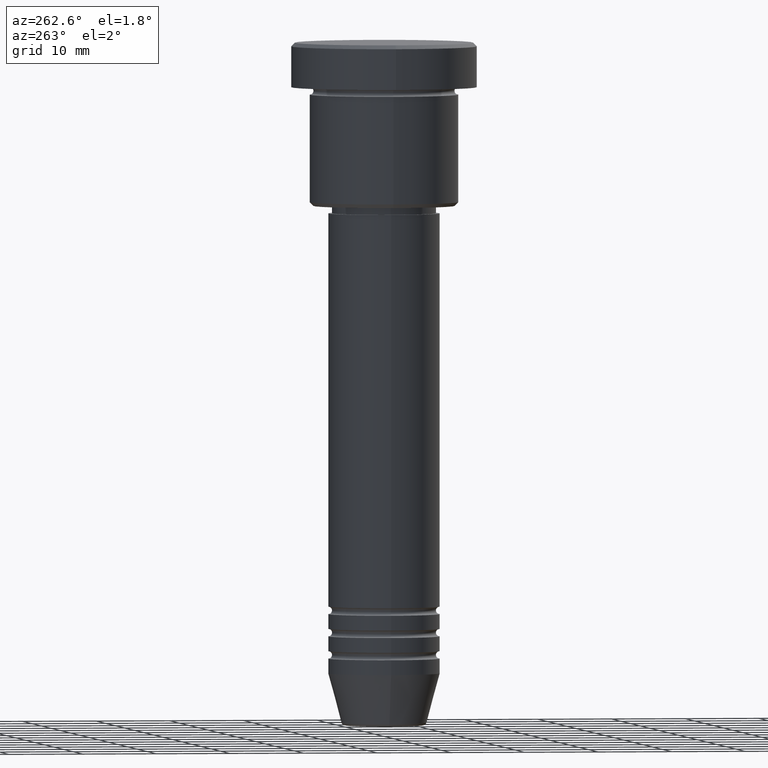
[diagram: clean part render]
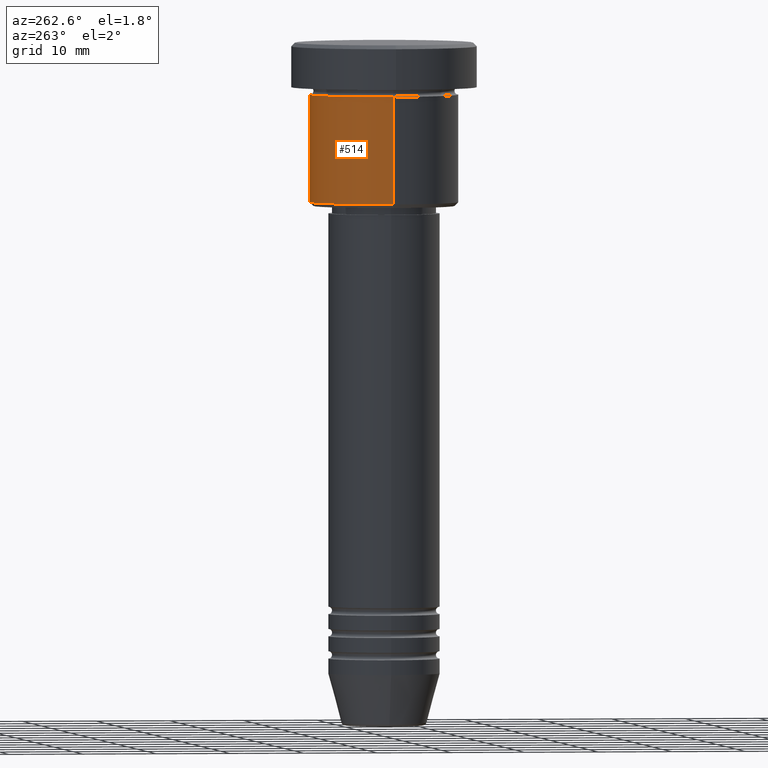
[diagram: same view with one face highlighted and labeled with its STEP entity id]
A machine part, auxiliary view. The second image highlights one B-rep face of the part: STEP entity #514.
In plain terms, the highlighted cylindrical surface (partial cylindrical patch) has radius 10 mm, axis along (-0, -0, 1).
Its self-contained STEP definition (entity closure, byte-faithful):
#19 = ORIENTED_EDGE ( 'NONE', *, *, #375, .T. ) ;
#138 = CARTESIAN_POINT ( 'NONE',  ( 10.00000000000000000, 0.000000000000000000, 0.000000000000000000 ) ) ;
#219 = CIRCLE ( 'NONE', #943, 10.00000000000000000 ) ;
#223 = CYLINDRICAL_SURFACE ( 'NONE', #564, 10.00000000000000000 ) ;
#279 = DIRECTION ( 'NONE',  ( -0.000000000000000000, -0.000000000000000000, 1.000000000000000000 ) ) ;
#292 = FACE_OUTER_BOUND ( 'NONE', #659, .T. ) ;
#358 = DIRECTION ( 'NONE',  ( 1.000000000000000000, 0.000000000000000000, 0.000000000000000000 ) ) ;
#375 = EDGE_CURVE ( 'NONE', #716, #924, #638, .T. ) ;
#385 = LINE ( 'NONE', #138, #830 ) ;
#462 = EDGE_CURVE ( 'NONE', #1076, #716, #219, .T. ) ;
#481 = DIRECTION ( 'NONE',  ( -0.000000000000000000, -0.000000000000000000, 1.000000000000000000 ) ) ;
#484 = CARTESIAN_POINT ( 'NONE',  ( -10.00000000000000000, 1.224646799147353256E-15, -21.50000000000000000 ) ) ;
#506 = EDGE_CURVE ( 'NONE', #1076, #1172, #385, .T. ) ;
#514 = ADVANCED_FACE ( 'NONE', ( #292 ), #223, .T. ) ;
#564 = AXIS2_PLACEMENT_3D ( 'NONE', #657, #591, #1023 ) ;
#579 = ORIENTED_EDGE ( 'NONE', *, *, #995, .F. ) ;
#591 = DIRECTION ( 'NONE',  ( -0.000000000000000000, -0.000000000000000000, 1.000000000000000000 ) ) ;
#638 = LINE ( 'NONE', #927, #869 ) ;
#654 = CARTESIAN_POINT ( 'NONE',  ( 10.00000000000000000, 0.000000000000000000, -21.50000000000000000 ) ) ;
#657 = CARTESIAN_POINT ( 'NONE',  ( 0.000000000000000000, 0.000000000000000000, 0.000000000000000000 ) ) ;
#659 = EDGE_LOOP ( 'NONE', ( #1105, #19, #579, #980 ) ) ;
#687 = CARTESIAN_POINT ( 'NONE',  ( 0.000000000000000000, 0.000000000000000000, -21.50000000000000000 ) ) ;
#716 = VERTEX_POINT ( 'NONE', #484 ) ;
#780 = DIRECTION ( 'NONE',  ( -0.000000000000000000, -0.000000000000000000, 1.000000000000000000 ) ) ;
#830 = VECTOR ( 'NONE', #780, 1000.000000000000000 ) ;
#857 = CARTESIAN_POINT ( 'NONE',  ( 10.00000000000000000, 0.000000000000000000, -6.999999999999996447 ) ) ;
#869 = VECTOR ( 'NONE', #997, 1000.000000000000000 ) ;
#924 = VERTEX_POINT ( 'NONE', #1178 ) ;
#927 = CARTESIAN_POINT ( 'NONE',  ( -10.00000000000000000, 1.224646799147353256E-15, 0.000000000000000000 ) ) ;
#943 = AXIS2_PLACEMENT_3D ( 'NONE', #687, #481, #1048 ) ;
#980 = ORIENTED_EDGE ( 'NONE', *, *, #506, .F. ) ;
#995 = EDGE_CURVE ( 'NONE', #1172, #924, #1082, .T. ) ;
#997 = DIRECTION ( 'NONE',  ( -0.000000000000000000, -0.000000000000000000, 1.000000000000000000 ) ) ;
#998 = CARTESIAN_POINT ( 'NONE',  ( 0.000000000000000000, 0.000000000000000000, -6.999999999999996447 ) ) ;
#1023 = DIRECTION ( 'NONE',  ( 1.000000000000000000, 0.000000000000000000, 0.000000000000000000 ) ) ;
#1048 = DIRECTION ( 'NONE',  ( -1.000000000000000000, 0.000000000000000000, 0.000000000000000000 ) ) ;
#1076 = VERTEX_POINT ( 'NONE', #654 ) ;
#1082 = CIRCLE ( 'NONE', #1115, 10.00000000000000000 ) ;
#1105 = ORIENTED_EDGE ( 'NONE', *, *, #462, .T. ) ;
#1115 = AXIS2_PLACEMENT_3D ( 'NONE', #998, #279, #358 ) ;
#1172 = VERTEX_POINT ( 'NONE', #857 ) ;
#1178 = CARTESIAN_POINT ( 'NONE',  ( -10.00000000000000000, 1.224646799147353256E-15, -6.999999999999996447 ) ) ;